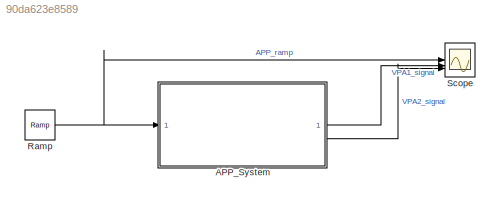
MODEL slx_90da623e8589
KIND model
CONFIG AbsTol = auto
CONFIG EnableMultiTasking = off
CONFIG FixedStep = auto
CONFIG MaxStep = 1e-3
CONFIG MinStep = auto
CONFIG RelTol = 1e-3
CONFIG SampleTimeConstraint = Unconstrained
CONFIG SolverName = VariableStepAuto
CONFIG StartTime = 0.0
CONFIG StopTime = 1
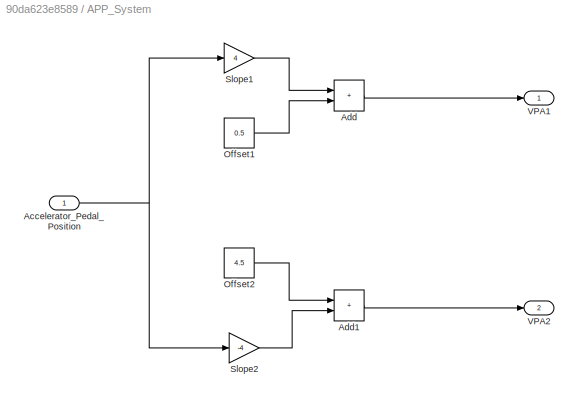
BLOCK [SubSystem] APP_System
BLOCK [Inport] APP_System/Accelerator_Pedal_Position
BLOCK [Sum] APP_System/Add
  IconShape = rectangular
BLOCK [Sum] APP_System/Add1
  IconShape = rectangular
BLOCK [Constant] APP_System/Offset1
  Value = 0.5
BLOCK [Constant] APP_System/Offset2
  Value = 4.5
BLOCK [Gain] APP_System/Slope1
  Gain = 4
BLOCK [Gain] APP_System/Slope2
  Gain = -4
BLOCK [Outport] APP_System/VPA1
BLOCK [Outport] APP_System/VPA2
  Port = 2
BLOCK [Reference] Ramp  REF=simulink/Sources/Ramp
  SourceBlock = simulink/Sources/Ramp
  SourceType = Ramp
BLOCK [Scope] Scope
  Floating = off
  NumInputPorts = 3
  ScopeSpecificationString = Simulink.scopes.TimeScopeBlockCfg('CurrentConfiguration', extmgr.ConfigurationSet(extmgr.Configuration('Core','General UI',true,'FigureColor',[1 1 1]),extmgr.Configuration('Core','Source UI',true),extmgr.Configuration('Sources','WiredSimulink',true),extmgr.Configuration('Visuals','Time Domain',true,'SerializedDisplays',{struct('MinYLimReal','-0.125','MaxYLimReal','1.125','YLabelReal','','MinYLimMa...<+2289ch>
NET APP_System/Accelerator_Pedal_Position:1 -> APP_System/Slope1:1, APP_System/Slope2:1
LINE APP_System/Add1:1 -> APP_System/VPA2:1
LINE APP_System/Add:1 -> APP_System/VPA1:1
LINE APP_System/Offset1:1 -> APP_System/Add:2
LINE APP_System/Offset2:1 -> APP_System/Add1:1
LINE APP_System/Slope1:1 -> APP_System/Add:1
LINE APP_System/Slope2:1 -> APP_System/Add1:2
LINE APP_System:1 -> Scope:2
LINE APP_System:2 -> Scope:3
NET Ramp:1 -> APP_System:1, Scope:1
note: NET lines group one-source signal fan-out (src -> all destinations, sorted); 1:1 wires keep LINE
